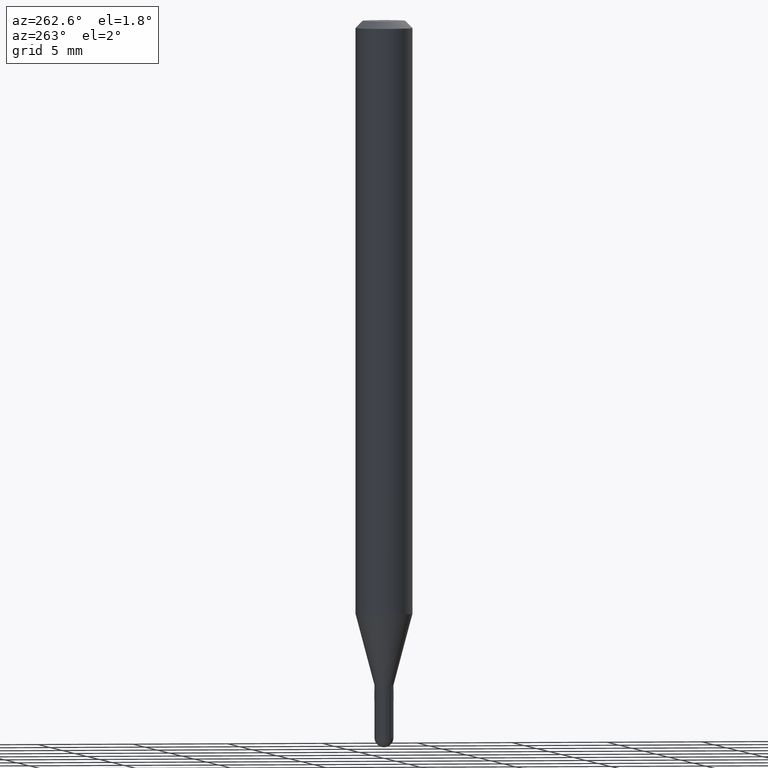
[diagram: clean part render]
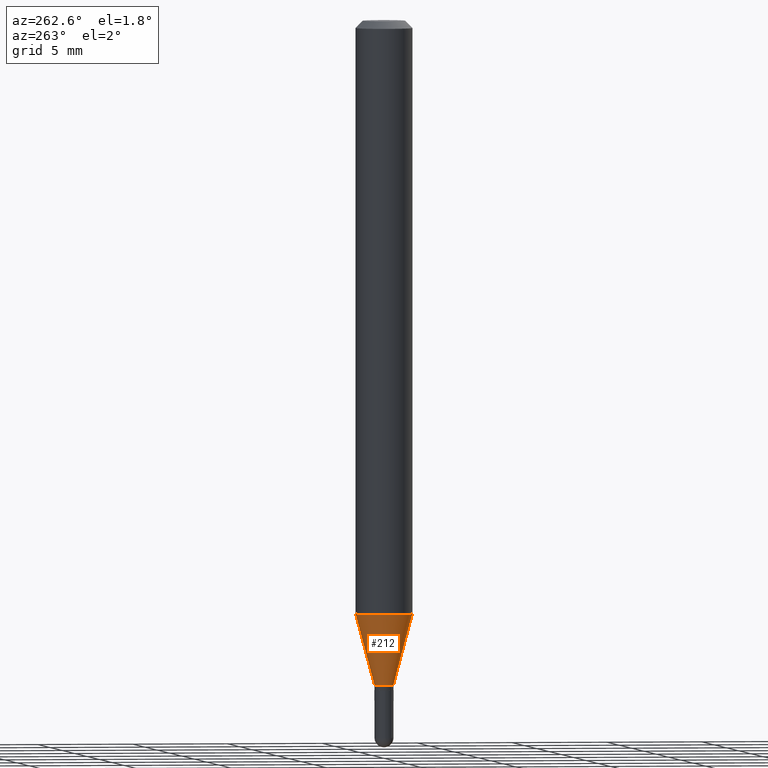
[diagram: same view with one face highlighted and labeled with its STEP entity id]
A machine part, auxiliary view. The second image highlights one B-rep face of the part: STEP entity #212.
In plain terms, the highlighted conical surface has half-angle 15 deg.
Its self-contained STEP definition (entity closure, byte-faithful):
#7 = DIRECTION ( 'NONE',  ( -6.982962677686266711E-15, -1.000000000000000000, 0.000000000000000000 ) ) ;
#21 = EDGE_CURVE ( 'NONE', #326, #479, #415, .T. ) ;
#29 = CARTESIAN_POINT ( 'NONE',  ( 1.399769189447725642E-16, 0.01969999999999514154, -1.368099999999999650 ) ) ;
#42 = ORIENTED_EDGE ( 'NONE', *, *, #464, .F. ) ;
#60 = ORIENTED_EDGE ( 'NONE', *, *, #192, .F. ) ;
#103 = AXIS2_PLACEMENT_3D ( 'NONE', #210, #362, #7 ) ;
#104 = EDGE_LOOP ( 'NONE', ( #60, #395, #277, #42 ) ) ;
#120 = FACE_OUTER_BOUND ( 'NONE', #104, .T. ) ;
#131 = AXIS2_PLACEMENT_3D ( 'NONE', #266, #451, #411 ) ;
#173 = DIRECTION ( 'NONE',  ( -2.444811295007267252E-29, 3.492422932273066730E-15, 1.000000000000000000 ) ) ;
#180 = CARTESIAN_POINT ( 'NONE',  ( 4.195754854663687794E-16, 0.05904999999999571703, -1.221243800722164652 ) ) ;
#192 = EDGE_CURVE ( 'NONE', #326, #450, #249, .T. ) ;
#197 = DIRECTION ( 'NONE',  ( 1.839019923739601104E-15, 0.2588190451025250693, 0.9659258262890670910 ) ) ;
#210 = CARTESIAN_POINT ( 'NONE',  ( 3.344746332699441266E-29, -4.777983813642781074E-15, -1.368099999999999650 ) ) ;
#211 = CARTESIAN_POINT ( 'NONE',  ( 2.985710637963151860E-29, -4.265099855538406098E-15, -1.221243800722164430 ) ) ;
#212 = ADVANCED_FACE ( 'NONE', ( #120 ), #325, .T. ) ;
#228 = CARTESIAN_POINT ( 'NONE',  ( -4.123439461173442532E-16, -0.05905000000000428656, -1.221243800722164430 ) ) ;
#232 = EDGE_CURVE ( 'NONE', #479, #470, #400, .T. ) ;
#249 = LINE ( 'NONE', #29, #331 ) ;
#251 = DIRECTION ( 'NONE',  ( -6.982962677686265922E-15, -1.000000000000000000, 4.626330217890369336E-15 ) ) ;
#260 = VECTOR ( 'NONE', #340, 39.37007874015748143 ) ;
#266 = CARTESIAN_POINT ( 'NONE',  ( 3.344746332699441266E-29, -4.777983813642781074E-15, -1.368099999999999650 ) ) ;
#277 = ORIENTED_EDGE ( 'NONE', *, *, #232, .T. ) ;
#294 = CARTESIAN_POINT ( 'NONE',  ( 2.797762022055708567E-16, 0.01969999999999514154, -1.368099999999999650 ) ) ;
#325 = CONICAL_SURFACE ( 'NONE', #103, 0.01969999999999991550, 0.2617993877991502960 ) ;
#326 = VERTEX_POINT ( 'NONE', #294 ) ;
#331 = VECTOR ( 'NONE', #197, 39.37007874015748143 ) ;
#340 = DIRECTION ( 'NONE',  ( -1.807323732225330928E-15, -0.2588190451025182970, 0.9659258262890689783 ) ) ;
#362 = DIRECTION ( 'NONE',  ( -2.444811295007267252E-29, 3.492422932273066730E-15, 1.000000000000000000 ) ) ;
#386 = CARTESIAN_POINT ( 'NONE',  ( -1.375643647503854166E-16, -0.01970000000000469292, -1.368099999999999650 ) ) ;
#394 = AXIS2_PLACEMENT_3D ( 'NONE', #211, #173, #251 ) ;
#395 = ORIENTED_EDGE ( 'NONE', *, *, #21, .T. ) ;
#400 = LINE ( 'NONE', #486, #260 ) ;
#406 = CIRCLE ( 'NONE', #394, 0.05904999999999999832 ) ;
#411 = DIRECTION ( 'NONE',  ( -6.982962677686266711E-15, -1.000000000000000000, 0.000000000000000000 ) ) ;
#415 = CIRCLE ( 'NONE', #131, 0.01969999999999991550 ) ;
#450 = VERTEX_POINT ( 'NONE', #180 ) ;
#451 = DIRECTION ( 'NONE',  ( -2.444811295007267252E-29, 3.492422932273066730E-15, 1.000000000000000000 ) ) ;
#464 = EDGE_CURVE ( 'NONE', #450, #470, #406, .T. ) ;
#470 = VERTEX_POINT ( 'NONE', #228 ) ;
#479 = VERTEX_POINT ( 'NONE', #386 ) ;
#486 = CARTESIAN_POINT ( 'NONE',  ( -1.375643647503854166E-16, -0.01970000000000469292, -1.368099999999999650 ) ) ;